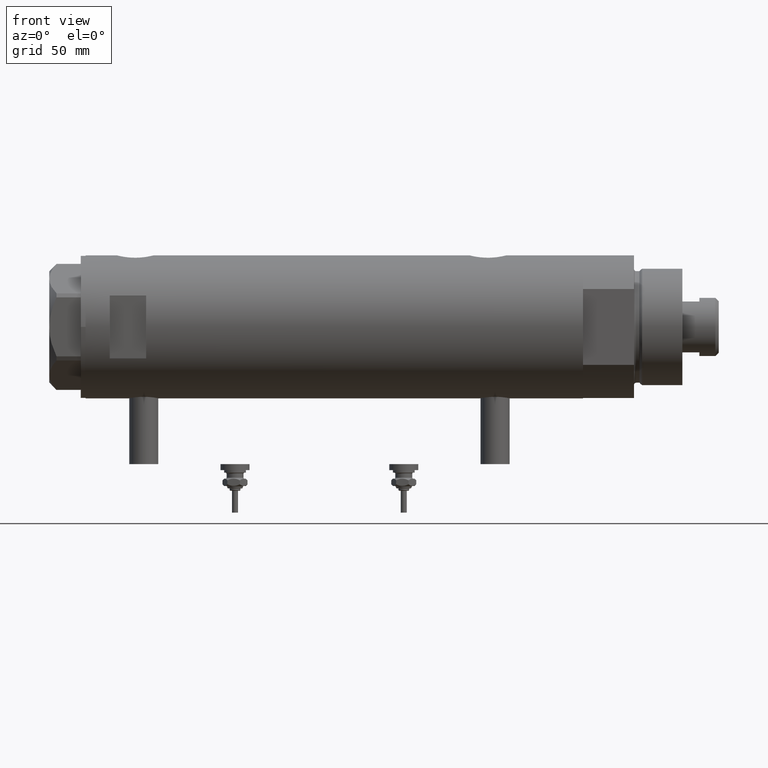
[diagram: clean part render]
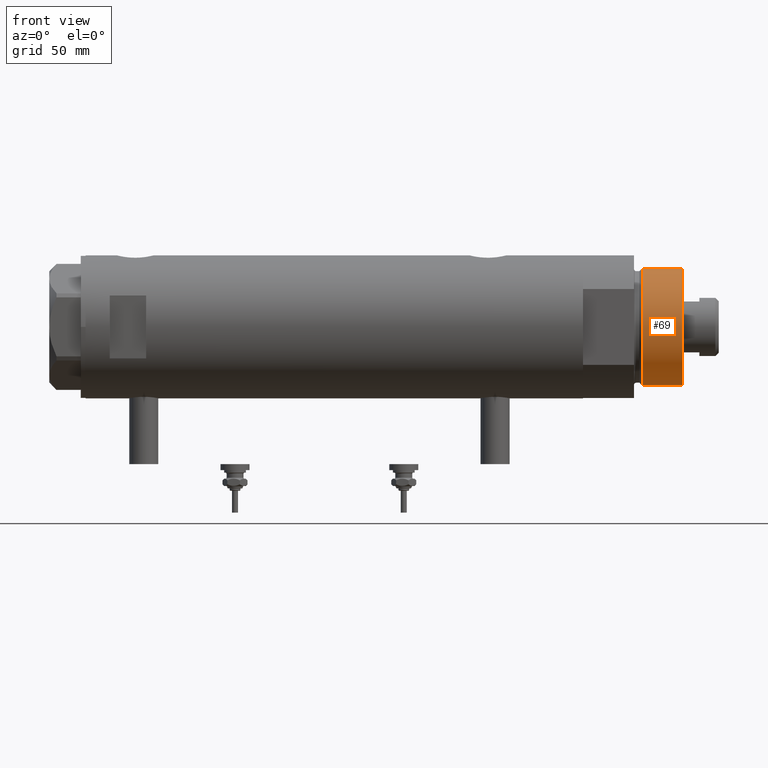
[diagram: same view with one face highlighted and labeled with its STEP entity id]
A machine part, front view. The second image highlights one B-rep face of the part: STEP entity #69.
In plain terms, the highlighted cylindrical surface (partial cylindrical patch) has radius 24 mm, axis along (-1, -0, 0).
Its self-contained STEP definition (entity closure, byte-faithful):
#69 = ADVANCED_FACE ( 'NONE', ( #5729 ), #2944, .T. ) ;
#499 = CARTESIAN_POINT ( 'NONE',  ( 24.00000000000000355, 2.939152317953648289E-15, 41.00000000000000000 ) ) ;
#588 = EDGE_CURVE ( 'NONE', #5117, #2561, #5454, .T. ) ;
#604 = EDGE_LOOP ( 'NONE', ( #3064, #2012, #3017, #2806 ) ) ;
#661 = DIRECTION ( 'NONE',  ( 0.000000000000000000, 0.000000000000000000, 1.000000000000000000 ) ) ;
#748 = EDGE_CURVE ( 'NONE', #5871, #2561, #4962, .T. ) ;
#775 = CARTESIAN_POINT ( 'NONE',  ( 24.00000000000000355, 2.939152317953648289E-15, 41.00000000000000000 ) ) ;
#1274 = AXIS2_PLACEMENT_3D ( 'NONE', #1584, #3401, #1616 ) ;
#1584 = CARTESIAN_POINT ( 'NONE',  ( 0.000000000000000000, 0.000000000000000000, 24.37384048104054557 ) ) ;
#1616 = DIRECTION ( 'NONE',  ( 1.000000000000000000, 0.000000000000000000, 0.000000000000000000 ) ) ;
#1662 = EDGE_CURVE ( 'NONE', #5631, #5871, #4503, .T. ) ;
#1945 = AXIS2_PLACEMENT_3D ( 'NONE', #4644, #661, #2484 ) ;
#2012 = ORIENTED_EDGE ( 'NONE', *, *, #1662, .F. ) ;
#2017 = CARTESIAN_POINT ( 'NONE',  ( -24.00000000000000355, 0.000000000000000000, 24.37384048104054557 ) ) ;
#2064 = CARTESIAN_POINT ( 'NONE',  ( 0.000000000000000000, 0.000000000000000000, 41.00000000000000000 ) ) ;
#2066 = EDGE_CURVE ( 'NONE', #5631, #5117, #3084, .T. ) ;
#2206 = DIRECTION ( 'NONE',  ( -0.000000000000000000, -0.000000000000000000, -1.000000000000000000 ) ) ;
#2222 = AXIS2_PLACEMENT_3D ( 'NONE', #2064, #3053, #4316 ) ;
#2484 = DIRECTION ( 'NONE',  ( 1.000000000000000000, 0.000000000000000000, 0.000000000000000000 ) ) ;
#2561 = VERTEX_POINT ( 'NONE', #4160 ) ;
#2581 = CARTESIAN_POINT ( 'NONE',  ( -24.00000000000000355, 0.000000000000000000, 41.00000000000000000 ) ) ;
#2642 = DIRECTION ( 'NONE',  ( -0.000000000000000000, -0.000000000000000000, -1.000000000000000000 ) ) ;
#2806 = ORIENTED_EDGE ( 'NONE', *, *, #588, .T. ) ;
#2944 = CYLINDRICAL_SURFACE ( 'NONE', #2222, 24.00000000000000355 ) ;
#3017 = ORIENTED_EDGE ( 'NONE', *, *, #2066, .T. ) ;
#3053 = DIRECTION ( 'NONE',  ( -0.000000000000000000, -0.000000000000000000, -1.000000000000000000 ) ) ;
#3064 = ORIENTED_EDGE ( 'NONE', *, *, #748, .F. ) ;
#3084 = LINE ( 'NONE', #4888, #4318 ) ;
#3401 = DIRECTION ( 'NONE',  ( -0.000000000000000000, -0.000000000000000000, 1.000000000000000000 ) ) ;
#4160 = CARTESIAN_POINT ( 'NONE',  ( 24.00000000000000355, 2.939152317953648289E-15, 24.37384048104054557 ) ) ;
#4316 = DIRECTION ( 'NONE',  ( -1.000000000000000000, 0.000000000000000000, 0.000000000000000000 ) ) ;
#4318 = VECTOR ( 'NONE', #2642, 1000.000000000000000 ) ;
#4503 = CIRCLE ( 'NONE', #1945, 24.00000000000000355 ) ;
#4644 = CARTESIAN_POINT ( 'NONE',  ( 0.000000000000000000, 0.000000000000000000, 41.00000000000000000 ) ) ;
#4787 = VECTOR ( 'NONE', #2206, 1000.000000000000000 ) ;
#4888 = CARTESIAN_POINT ( 'NONE',  ( -24.00000000000000355, 0.000000000000000000, 41.00000000000000000 ) ) ;
#4962 = LINE ( 'NONE', #775, #4787 ) ;
#5117 = VERTEX_POINT ( 'NONE', #2017 ) ;
#5454 = CIRCLE ( 'NONE', #1274, 24.00000000000000355 ) ;
#5631 = VERTEX_POINT ( 'NONE', #2581 ) ;
#5729 = FACE_OUTER_BOUND ( 'NONE', #604, .T. ) ;
#5871 = VERTEX_POINT ( 'NONE', #499 ) ;